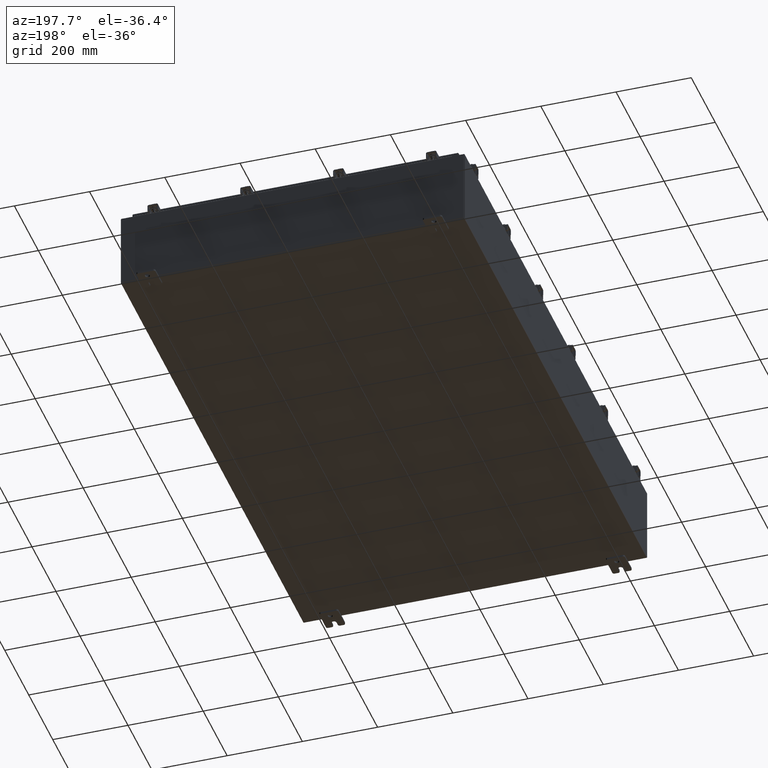
[diagram: clean part render]
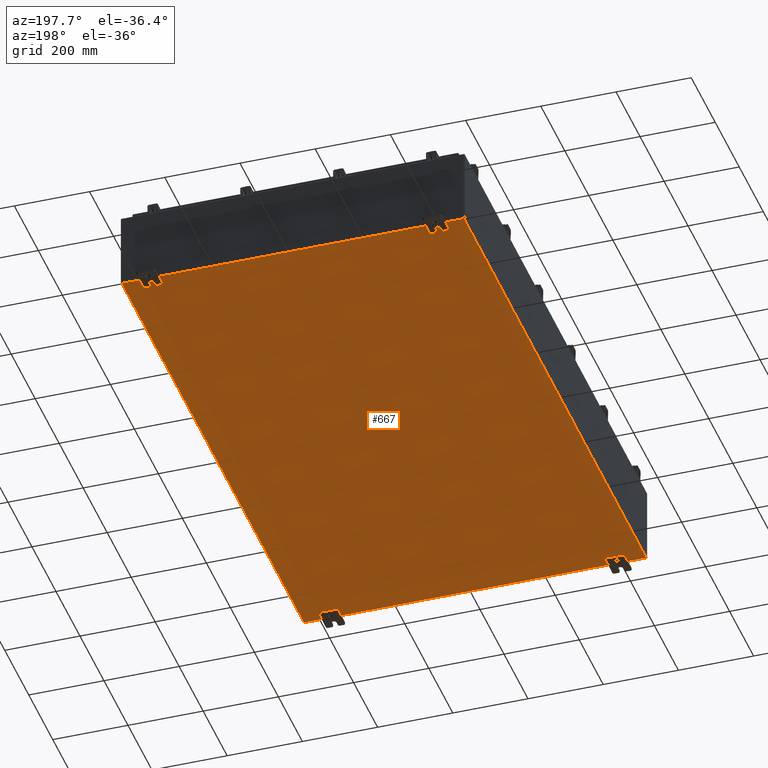
[diagram: same view with one face highlighted and labeled with its STEP entity id]
A machine part, auxiliary view. The second image highlights one B-rep face of the part: STEP entity #667.
In plain terms, the highlighted planar face has unit normal (0, 0, -1).
Its self-contained STEP definition (entity closure, byte-faithful):
#667 = ADVANCED_FACE ( 'NONE', ( #10121 ), #17177, .T. ) ;
#2650 = EDGE_CURVE ( 'NONE', #21962, #24163, #20326, .T. ) ;
#2955 = VECTOR ( 'NONE', #5723, 39.37007874015748100 ) ;
#3574 = CARTESIAN_POINT ( 'NONE',  ( -17.91230000000000200, -29.92530000000002100, -0.07469999999999994700 ) ) ;
#4085 = LINE ( 'NONE', #26247, #19743 ) ;
#4441 = ORIENTED_EDGE ( 'NONE', *, *, #16950, .T. ) ;
#5343 = VECTOR ( 'NONE', #24856, 39.37007874015748100 ) ;
#5601 = ORIENTED_EDGE ( 'NONE', *, *, #2650, .F. ) ;
#5723 = DIRECTION ( 'NONE',  ( -0.0000000000000000000, -1.000000000000000000, -0.0000000000000000000 ) ) ;
#5849 = CARTESIAN_POINT ( 'NONE',  ( -18.00000000000000400, -29.92530000000001100, -0.07470000000000000300 ) ) ;
#5938 = CARTESIAN_POINT ( 'NONE',  ( -17.91230000000000200, 29.92529999999998600, -0.07470000000000000300 ) ) ;
#6049 = EDGE_CURVE ( 'NONE', #11032, #19899, #4085, .T. ) ;
#10121 = FACE_OUTER_BOUND ( 'NONE', #17797, .T. ) ;
#10466 = ORIENTED_EDGE ( 'NONE', *, *, #10715, .T. ) ;
#10715 = EDGE_CURVE ( 'NONE', #11032, #24163, #14923, .T. ) ;
#11032 = VERTEX_POINT ( 'NONE', #21508 ) ;
#11893 = DIRECTION ( 'NONE',  ( 1.000000000000000000, 0.0000000000000000000, 0.0000000000000000000 ) ) ;
#14635 = VECTOR ( 'NONE', #11893, 39.37007874015748100 ) ;
#14923 = LINE ( 'NONE', #27053, #2955 ) ;
#16179 = CARTESIAN_POINT ( 'NONE',  ( 0.0000000000000000000, 0.0000000000000000000, -0.07470000000000000300 ) ) ;
#16950 = EDGE_CURVE ( 'NONE', #21962, #19899, #17338, .T. ) ;
#17079 = DIRECTION ( 'NONE',  ( 0.0000000000000000000, 0.0000000000000000000, -1.000000000000000000 ) ) ;
#17177 = PLANE ( 'NONE',  #25479 ) ;
#17290 = DIRECTION ( 'NONE',  ( -1.000000000000000000, 0.0000000000000000000, -0.0000000000000000000 ) ) ;
#17338 = LINE ( 'NONE', #3574, #5343 ) ;
#17797 = EDGE_LOOP ( 'NONE', ( #5601, #4441, #21425, #10466 ) ) ;
#19743 = VECTOR ( 'NONE', #26635, 39.37007874015748100 ) ;
#19757 = CARTESIAN_POINT ( 'NONE',  ( 17.91229999999999800, -29.92530000000001100, -0.07470000000000000300 ) ) ;
#19899 = VERTEX_POINT ( 'NONE', #5938 ) ;
#20326 = LINE ( 'NONE', #5849, #14635 ) ;
#21425 = ORIENTED_EDGE ( 'NONE', *, *, #6049, .F. ) ;
#21508 = CARTESIAN_POINT ( 'NONE',  ( 17.91229999999999800, 29.92529999999999300, -0.07469999999999994700 ) ) ;
#21962 = VERTEX_POINT ( 'NONE', #22963 ) ;
#22963 = CARTESIAN_POINT ( 'NONE',  ( -17.91230000000000200, -29.92530000000001100, -0.07469999999999994700 ) ) ;
#24163 = VERTEX_POINT ( 'NONE', #19757 ) ;
#24856 = DIRECTION ( 'NONE',  ( -0.0000000000000000000, 1.000000000000000000, -0.0000000000000000000 ) ) ;
#25479 = AXIS2_PLACEMENT_3D ( 'NONE', #16179, #17079, #17290 ) ;
#26247 = CARTESIAN_POINT ( 'NONE',  ( -18.00000000000000400, 29.92529999999998900, -0.07470000000000000300 ) ) ;
#26635 = DIRECTION ( 'NONE',  ( -1.000000000000000000, -0.0000000000000000000, -0.0000000000000000000 ) ) ;
#27053 = CARTESIAN_POINT ( 'NONE',  ( 17.91229999999999800, 29.92529999999999300, -0.07469999999999994700 ) ) ;